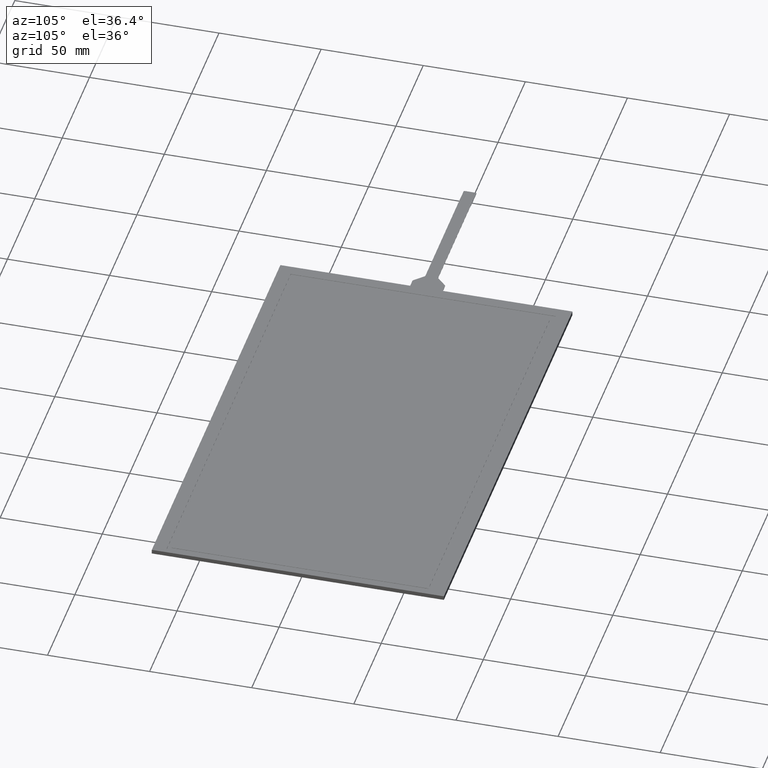
[diagram: clean part render]
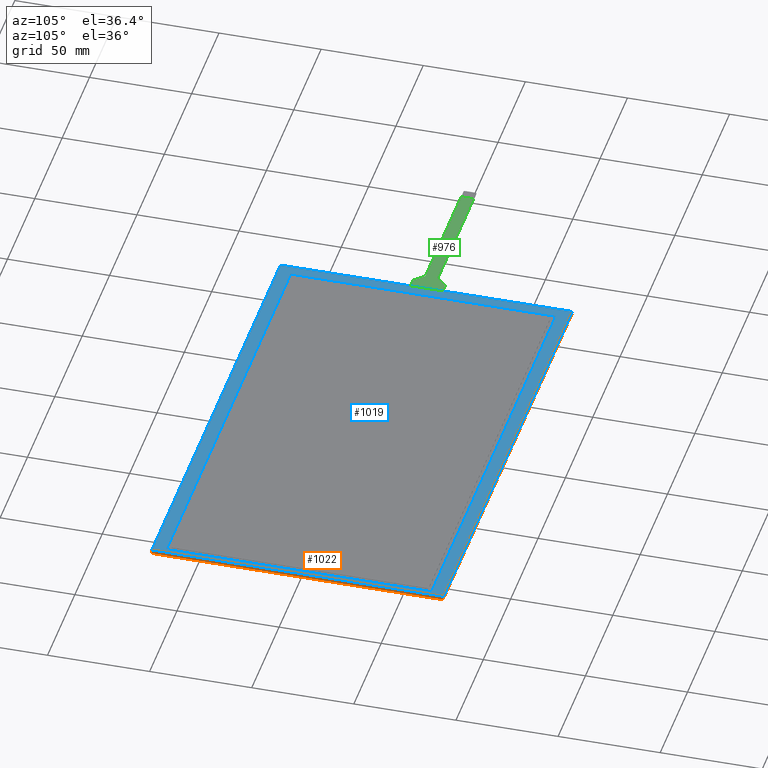
[diagram: same view with three faces highlighted in distinct colors, each labeled with its STEP entity id]
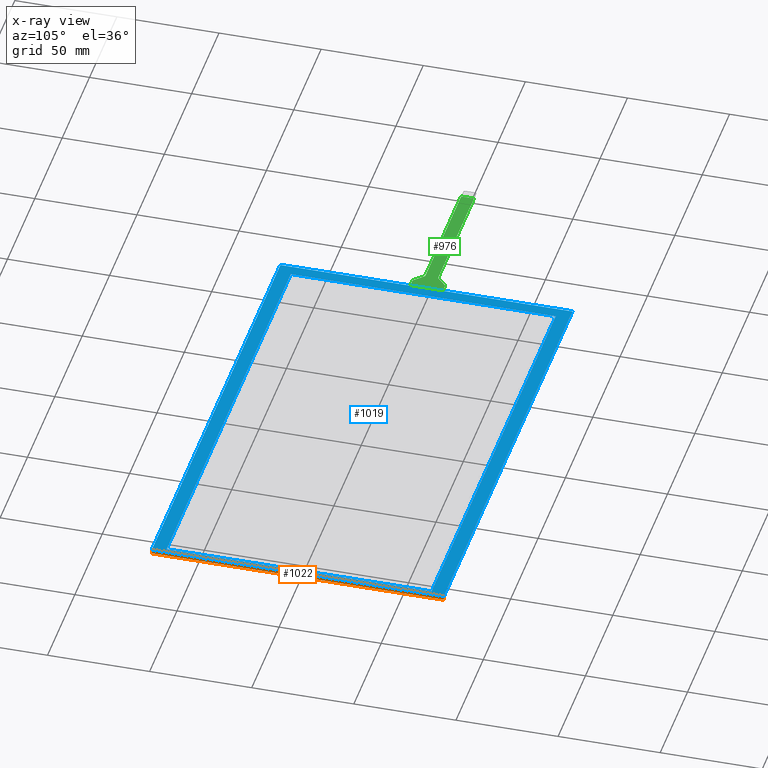
[diagram: x-ray of the same camera — body ghosted, the three highlighted faces saturated]
A machine part, auxiliary view with three faces highlighted in distinct colors.
The next image is the same camera in x-ray (body ghosted, the three faces saturated) — at least one of them is partly hidden behind the body in this view.
Their STEP definitions:

[orange] entity #1022 — the highlighted planar face has unit normal (1, 0, 0).
#90=PLANE('',#1105);
#141=FACE_OUTER_BOUND('',#195,.T.);
#195=EDGE_LOOP('',(#953,#954,#955,#956));
#316=LINE('',#1626,#442);
#321=LINE('',#1636,#447);
#322=LINE('',#1639,#448);
#323=LINE('',#1640,#449);
#442=VECTOR('',#1342,10.);
#447=VECTOR('',#1351,10.);
#448=VECTOR('',#1354,10.);
#449=VECTOR('',#1355,10.);
#547=VERTEX_POINT('',#1619);
#550=VERTEX_POINT('',#1624);
#553=VERTEX_POINT('',#1634);
#554=VERTEX_POINT('',#1638);
#684=EDGE_CURVE('',#550,#547,#316,.T.);
#689=EDGE_CURVE('',#550,#553,#321,.T.);
#690=EDGE_CURVE('',#554,#553,#322,.T.);
#691=EDGE_CURVE('',#547,#554,#323,.T.);
#953=ORIENTED_EDGE('',*,*,#684,.F.);
#954=ORIENTED_EDGE('',*,*,#689,.T.);
#955=ORIENTED_EDGE('',*,*,#690,.F.);
#956=ORIENTED_EDGE('',*,*,#691,.F.);
#1022=ADVANCED_FACE('',(#141),#90,.T.);
#1105=AXIS2_PLACEMENT_3D('',#1637,#1352,#1353);
#1342=DIRECTION('',(0.,1.,0.));
#1351=DIRECTION('',(0.,0.,-1.));
#1352=DIRECTION('center_axis',(1.,0.,0.));
#1353=DIRECTION('ref_axis',(0.,-1.,0.));
#1354=DIRECTION('',(0.,-1.,0.));
#1355=DIRECTION('',(0.,0.,-1.));
#1619=CARTESIAN_POINT('',(115.69,71.5000000000001,0.));
#1624=CARTESIAN_POINT('',(115.69,-71.4999999999999,0.));
#1626=CARTESIAN_POINT('',(115.69,-71.4999999999999,0.));
#1634=CARTESIAN_POINT('',(115.69,-71.4999999999999,-2.1));
#1636=CARTESIAN_POINT('',(115.69,-71.4999999999999,0.));
#1637=CARTESIAN_POINT('Origin',(115.69,71.5000000000001,0.));
#1638=CARTESIAN_POINT('',(115.69,71.5000000000001,-2.1));
#1639=CARTESIAN_POINT('',(115.69,-71.4999999999999,-2.1));
#1640=CARTESIAN_POINT('',(115.69,71.5000000000001,0.));

[blue] entity #1019 — the highlighted planar face has unit normal (0, 0, 1).
#47=FACE_BOUND('',#191,.T.);
#87=PLANE('',#1102);
#138=FACE_OUTER_BOUND('',#190,.T.);
#190=EDGE_LOOP('',(#933,#934,#935,#936));
#191=EDGE_LOOP('',(#937,#938,#939,#940));
#301=LINE('',#1596,#427);
#305=LINE('',#1604,#431);
#308=LINE('',#1610,#434);
#311=LINE('',#1615,#437);
#313=LINE('',#1621,#439);
#314=LINE('',#1623,#440);
#315=LINE('',#1625,#441);
#316=LINE('',#1626,#442);
#427=VECTOR('',#1317,10.);
#431=VECTOR('',#1323,10.);
#434=VECTOR('',#1328,10.);
#437=VECTOR('',#1333,10.);
#439=VECTOR('',#1339,10.);
#440=VECTOR('',#1340,10.);
#441=VECTOR('',#1341,10.);
#442=VECTOR('',#1342,10.);
#539=VERTEX_POINT('',#1594);
#540=VERTEX_POINT('',#1595);
#543=VERTEX_POINT('',#1603);
#545=VERTEX_POINT('',#1609);
#547=VERTEX_POINT('',#1619);
#548=VERTEX_POINT('',#1620);
#549=VERTEX_POINT('',#1622);
#550=VERTEX_POINT('',#1624);
#669=EDGE_CURVE('',#539,#540,#301,.T.);
#673=EDGE_CURVE('',#543,#539,#305,.T.);
#676=EDGE_CURVE('',#545,#543,#308,.T.);
#679=EDGE_CURVE('',#540,#545,#311,.T.);
#681=EDGE_CURVE('',#547,#548,#313,.T.);
#682=EDGE_CURVE('',#548,#549,#314,.T.);
#683=EDGE_CURVE('',#549,#550,#315,.T.);
#684=EDGE_CURVE('',#550,#547,#316,.T.);
#933=ORIENTED_EDGE('',*,*,#681,.T.);
#934=ORIENTED_EDGE('',*,*,#682,.T.);
#935=ORIENTED_EDGE('',*,*,#683,.T.);
#936=ORIENTED_EDGE('',*,*,#684,.T.);
#937=ORIENTED_EDGE('',*,*,#669,.T.);
#938=ORIENTED_EDGE('',*,*,#679,.T.);
#939=ORIENTED_EDGE('',*,*,#676,.T.);
#940=ORIENTED_EDGE('',*,*,#673,.T.);
#1019=ADVANCED_FACE('',(#138,#47),#87,.T.);
#1102=AXIS2_PLACEMENT_3D('',#1618,#1337,#1338);
#1317=DIRECTION('',(-2.73748935028548E-16,1.,0.));
#1323=DIRECTION('',(-1.,-7.81778381920716E-17,0.));
#1328=DIRECTION('',(0.,-1.,0.));
#1333=DIRECTION('',(1.,0.,0.));
#1337=DIRECTION('center_axis',(0.,0.,1.));
#1338=DIRECTION('ref_axis',(1.,0.,0.));
#1339=DIRECTION('',(-1.,0.,0.));
#1340=DIRECTION('',(2.48441516000035E-16,-1.,0.));
#1341=DIRECTION('',(1.,1.51179305480872E-16,0.));
#1342=DIRECTION('',(0.,1.,0.));
#1594=CARTESIAN_POINT('',(-113.61,-64.8899999999999,0.));
#1595=CARTESIAN_POINT('',(-113.61,64.8900000000001,0.));
#1596=CARTESIAN_POINT('',(-113.61,-32.4449999999999,0.));
#1603=CARTESIAN_POINT('',(113.61,-64.8899999999999,0.));
#1604=CARTESIAN_POINT('',(55.9,-64.8899999999999,0.));
#1609=CARTESIAN_POINT('',(113.61,64.8900000000001,0.));
#1610=CARTESIAN_POINT('',(113.61,32.4450000000001,0.));
#1615=CARTESIAN_POINT('',(-57.71,64.8900000000001,0.));
#1618=CARTESIAN_POINT('Origin',(-1.80999999999999,7.99360577730113E-14,
0.));
#1619=CARTESIAN_POINT('',(115.69,71.5000000000001,0.));
#1620=CARTESIAN_POINT('',(-119.31,71.5000000000001,0.));
#1621=CARTESIAN_POINT('',(115.69,71.5000000000001,0.));
#1622=CARTESIAN_POINT('',(-119.31,-71.4999999999999,0.));
#1623=CARTESIAN_POINT('',(-119.31,71.5000000000001,0.));
#1624=CARTESIAN_POINT('',(115.69,-71.4999999999999,0.));
#1625=CARTESIAN_POINT('',(-119.31,-71.4999999999999,0.));
#1626=CARTESIAN_POINT('',(115.69,-71.4999999999999,0.));

[green] entity #976 — the highlighted planar face has unit normal (0, 0, 1).
#49=PLANE('',#1049);
#95=FACE_OUTER_BOUND('',#146,.T.);
#146=EDGE_LOOP('',(#697,#698,#699,#700,#701,#702,#703,#704,#705,#706,#707,
#708));
#201=LINE('',#1375,#327);
#202=LINE('',#1379,#328);
#203=LINE('',#1381,#329);
#204=LINE('',#1383,#330);
#205=LINE('',#1387,#331);
#206=LINE('',#1391,#332);
#207=LINE('',#1393,#333);
#208=LINE('',#1394,#334);
#327=VECTOR('',#1121,10.);
#328=VECTOR('',#1124,10.);
#329=VECTOR('',#1125,10.);
#330=VECTOR('',#1126,10.);
#331=VECTOR('',#1129,10.);
#332=VECTOR('',#1132,10.);
#333=VECTOR('',#1133,10.);
#334=VECTOR('',#1134,10.);
#452=CIRCLE('',#1048,1.);
#453=CIRCLE('',#1050,1.);
#454=CIRCLE('',#1051,1.);
#455=CIRCLE('',#1052,1.);
#465=VERTEX_POINT('',#1368);
#466=VERTEX_POINT('',#1370);
#467=VERTEX_POINT('',#1374);
#468=VERTEX_POINT('',#1376);
#469=VERTEX_POINT('',#1378);
#470=VERTEX_POINT('',#1380);
#471=VERTEX_POINT('',#1382);
#472=VERTEX_POINT('',#1384);
#473=VERTEX_POINT('',#1386);
#474=VERTEX_POINT('',#1388);
#475=VERTEX_POINT('',#1390);
#476=VERTEX_POINT('',#1392);
#557=EDGE_CURVE('',#465,#466,#452,.T.);
#559=EDGE_CURVE('',#465,#467,#201,.T.);
#560=EDGE_CURVE('',#468,#467,#453,.T.);
#561=EDGE_CURVE('',#468,#469,#202,.T.);
#562=EDGE_CURVE('',#469,#470,#203,.T.);
#563=EDGE_CURVE('',#470,#471,#204,.T.);
#564=EDGE_CURVE('',#472,#471,#454,.T.);
#565=EDGE_CURVE('',#472,#473,#205,.T.);
#566=EDGE_CURVE('',#474,#473,#455,.T.);
#567=EDGE_CURVE('',#474,#475,#206,.T.);
#568=EDGE_CURVE('',#476,#475,#207,.T.);
#569=EDGE_CURVE('',#476,#466,#208,.T.);
#697=ORIENTED_EDGE('',*,*,#557,.F.);
#698=ORIENTED_EDGE('',*,*,#559,.T.);
#699=ORIENTED_EDGE('',*,*,#560,.F.);
#700=ORIENTED_EDGE('',*,*,#561,.T.);
#701=ORIENTED_EDGE('',*,*,#562,.T.);
#702=ORIENTED_EDGE('',*,*,#563,.T.);
#703=ORIENTED_EDGE('',*,*,#564,.F.);
#704=ORIENTED_EDGE('',*,*,#565,.T.);
#705=ORIENTED_EDGE('',*,*,#566,.F.);
#706=ORIENTED_EDGE('',*,*,#567,.T.);
#707=ORIENTED_EDGE('',*,*,#568,.F.);
#708=ORIENTED_EDGE('',*,*,#569,.T.);
#976=ADVANCED_FACE('',(#95),#49,.T.);
#1048=AXIS2_PLACEMENT_3D('',#1371,#1116,#1117);
#1049=AXIS2_PLACEMENT_3D('',#1373,#1119,#1120);
#1050=AXIS2_PLACEMENT_3D('',#1377,#1122,#1123);
#1051=AXIS2_PLACEMENT_3D('',#1385,#1127,#1128);
#1052=AXIS2_PLACEMENT_3D('',#1389,#1130,#1131);
#1116=DIRECTION('center_axis',(0.,0.,-1.));
#1117=DIRECTION('ref_axis',(-0.382683432365089,0.923879532511287,0.));
#1119=DIRECTION('center_axis',(0.,0.,1.));
#1120=DIRECTION('ref_axis',(1.,0.,0.));
#1121=DIRECTION('',(-0.707106781186548,-0.707106781186547,0.));
#1122=DIRECTION('center_axis',(0.,0.,1.));
#1123=DIRECTION('ref_axis',(0.382683432365089,-0.923879532511287,0.));
#1124=DIRECTION('',(-1.,-1.4960452104878E-16,0.));
#1125=DIRECTION('',(0.,-1.,0.));
#1126=DIRECTION('',(1.,1.41730598888318E-16,0.));
#1127=DIRECTION('center_axis',(0.,0.,1.));
#1128=DIRECTION('ref_axis',(0.382683432365091,0.923879532511286,0.));
#1129=DIRECTION('',(0.707106781186547,-0.707106781186548,0.));
#1130=DIRECTION('center_axis',(0.,0.,-1.));
#1131=DIRECTION('ref_axis',(-0.382683432365089,-0.923879532511287,0.));
#1132=DIRECTION('',(1.,2.41352831440252E-16,0.));
#1133=DIRECTION('',(2.48441516000035E-16,-1.,0.));
#1134=DIRECTION('',(-1.,-2.41352831440252E-16,0.));
#1368=CARTESIAN_POINT('',(-124.202893218813,7.74710678118662,-0.188));
#1370=CARTESIAN_POINT('',(-123.495786437627,8.04000000000007,-0.188));
#1371=CARTESIAN_POINT('Origin',(-123.495786437627,7.04000000000008,-0.188));
#1373=CARTESIAN_POINT('Origin',(-159.31,0.0150000000000633,-0.188));
#1374=CARTESIAN_POINT('',(-128.517106781187,3.43289321881351,-0.188));
#1375=CARTESIAN_POINT('',(-123.91,8.04000000000007,-0.188));
#1376=CARTESIAN_POINT('',(-129.224213562373,3.14000000000006,-0.188));
#1377=CARTESIAN_POINT('Origin',(-129.224213562373,4.14000000000006,-0.188));
#1378=CARTESIAN_POINT('',(-194.31,3.14000000000005,-0.188));
#1379=CARTESIAN_POINT('',(-128.81,3.14000000000006,-0.188));
#1380=CARTESIAN_POINT('',(-194.31,-3.10999999999995,-0.188));
#1381=CARTESIAN_POINT('',(-194.31,1.57750000000006,-0.188));
#1382=CARTESIAN_POINT('',(-129.224213562373,-3.10999999999994,-0.188));
#1383=CARTESIAN_POINT('',(-199.31,-3.10999999999995,-0.188));
#1384=CARTESIAN_POINT('',(-128.517106781187,-3.4028932188134,-0.188));
#1385=CARTESIAN_POINT('Origin',(-129.224213562373,-4.10999999999994,-0.188));
#1386=CARTESIAN_POINT('',(-124.202893218813,-7.7171067811865,-0.188));
#1387=CARTESIAN_POINT('',(-128.81,-3.10999999999994,-0.188));
#1388=CARTESIAN_POINT('',(-123.495786437627,-8.00999999999995,-0.188));
#1389=CARTESIAN_POINT('Origin',(-123.495786437627,-7.00999999999995,-0.188));
#1390=CARTESIAN_POINT('',(-119.31,-8.00999999999995,-0.188));
#1391=CARTESIAN_POINT('',(-123.91,-8.00999999999995,-0.188));
#1392=CARTESIAN_POINT('',(-119.31,8.04000000000008,-0.188));
#1393=CARTESIAN_POINT('',(-119.31,-35.7424999999999,-0.188));
#1394=CARTESIAN_POINT('',(-119.31,8.04000000000008,-0.188));